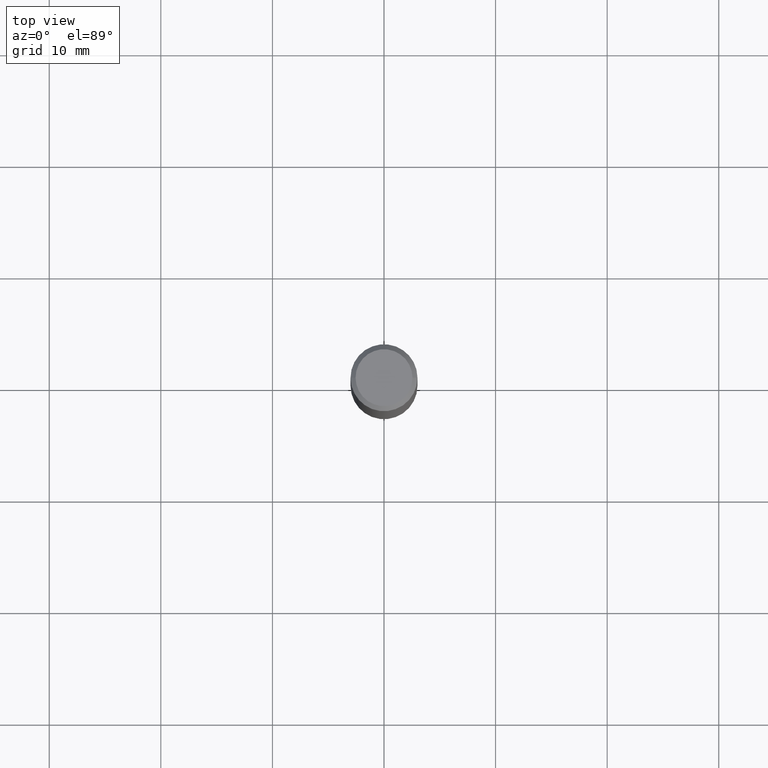
[diagram: clean part render]
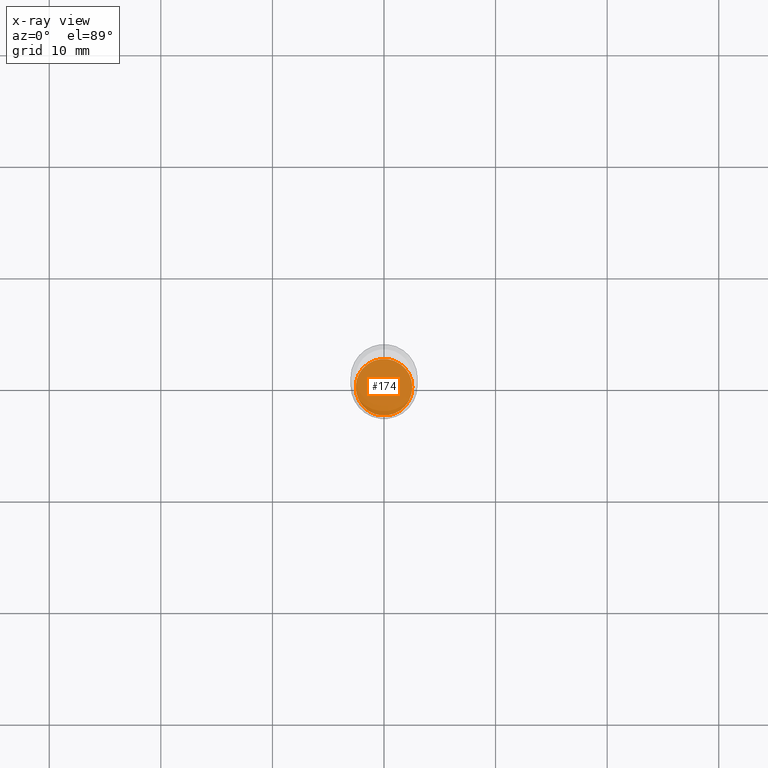
[diagram: x-ray — body ghosted, one internal face saturated and labeled with its STEP entity id]
A machine part, top view, then the same camera in x-ray: the body is ghosted and one INTERNAL B-rep face — a face not visible from any outside direction — is saturated and labeled: STEP entity #174.
In plain terms, the highlighted planar face has unit normal (-0, 0, 1).
Its self-contained STEP definition (entity closure, byte-faithful):
#46 = CIRCLE ( 'NONE', #177, 0.09990000000000000269 ) ;
#97 = CARTESIAN_POINT ( 'NONE',  ( -0.09990000000000000269, -6.106730782696096612E-15, -1.953100000000000058 ) ) ;
#103 = CARTESIAN_POINT ( 'NONE',  ( 4.776245125360189939E-29, -6.819212202894547031E-15, -1.953100000000000058 ) ) ;
#105 = EDGE_CURVE ( 'NONE', #361, #331, #163, .T. ) ;
#135 = AXIS2_PLACEMENT_3D ( 'NONE', #338, #173, #310 ) ;
#163 = CIRCLE ( 'NONE', #351, 0.09990000000000000269 ) ;
#173 = DIRECTION ( 'NONE',  ( -2.438088387897960049E-29, 3.491481338843145188E-15, 1.000000000000000000 ) ) ;
#174 = ADVANCED_FACE ( 'NONE', ( #427 ), #308, .F. ) ;
#177 = AXIS2_PLACEMENT_3D ( 'NONE', #330, #192, #269 ) ;
#182 = EDGE_LOOP ( 'NONE', ( #399, #328 ) ) ;
#192 = DIRECTION ( 'NONE',  ( -2.445468806185136597E-29, 3.491481338843145583E-15, 1.000000000000000000 ) ) ;
#269 = DIRECTION ( 'NONE',  ( 1.000000000000000000, -6.982962677686267499E-15, 0.000000000000000000 ) ) ;
#308 = PLANE ( 'NONE',  #135 ) ;
#310 = DIRECTION ( 'NONE',  ( 1.000000000000000000, -6.982962677686265922E-15, 4.876176775795935793E-29 ) ) ;
#328 = ORIENTED_EDGE ( 'NONE', *, *, #105, .F. ) ;
#330 = CARTESIAN_POINT ( 'NONE',  ( 4.776245125360189939E-29, -6.819212202894547031E-15, -1.953100000000000058 ) ) ;
#331 = VERTEX_POINT ( 'NONE', #438 ) ;
#337 = EDGE_CURVE ( 'NONE', #331, #361, #46, .T. ) ;
#338 = CARTESIAN_POINT ( 'NONE',  ( 4.776245125360189939E-29, -6.819212202894547031E-15, -1.953100000000000058 ) ) ;
#349 = DIRECTION ( 'NONE',  ( -2.445468806185136597E-29, 3.491481338843145583E-15, 1.000000000000000000 ) ) ;
#351 = AXIS2_PLACEMENT_3D ( 'NONE', #103, #349, #378 ) ;
#361 = VERTEX_POINT ( 'NONE', #97 ) ;
#378 = DIRECTION ( 'NONE',  ( 1.000000000000000000, -6.982962677686267499E-15, 0.000000000000000000 ) ) ;
#399 = ORIENTED_EDGE ( 'NONE', *, *, #337, .F. ) ;
#427 = FACE_OUTER_BOUND ( 'NONE', #182, .T. ) ;
#438 = CARTESIAN_POINT ( 'NONE',  ( 0.09990000000000000269, -7.516810174395405889E-15, -1.953100000000000058 ) ) ;